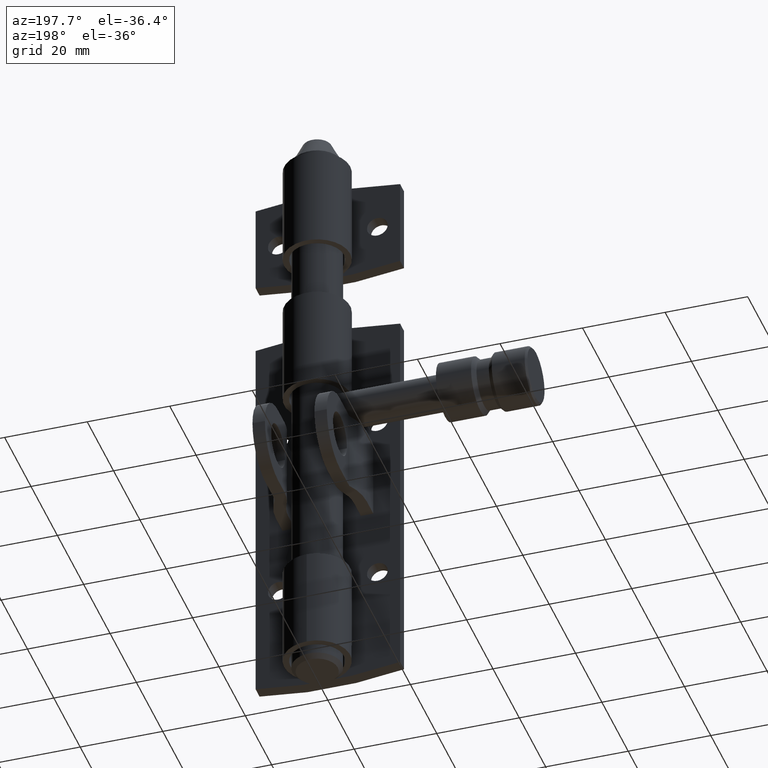
[diagram: clean part render]
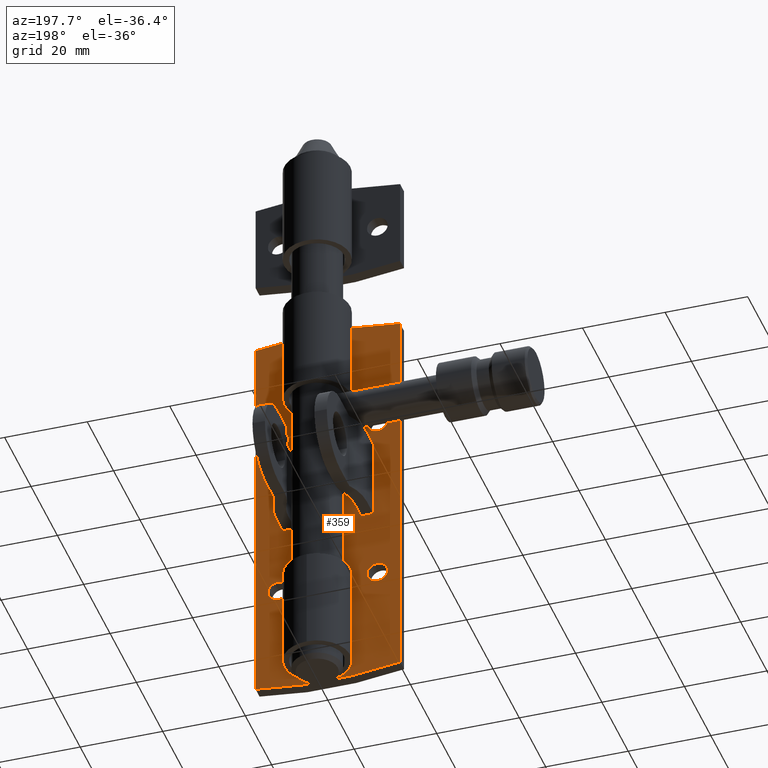
[diagram: same view with one face highlighted and labeled with its STEP entity id]
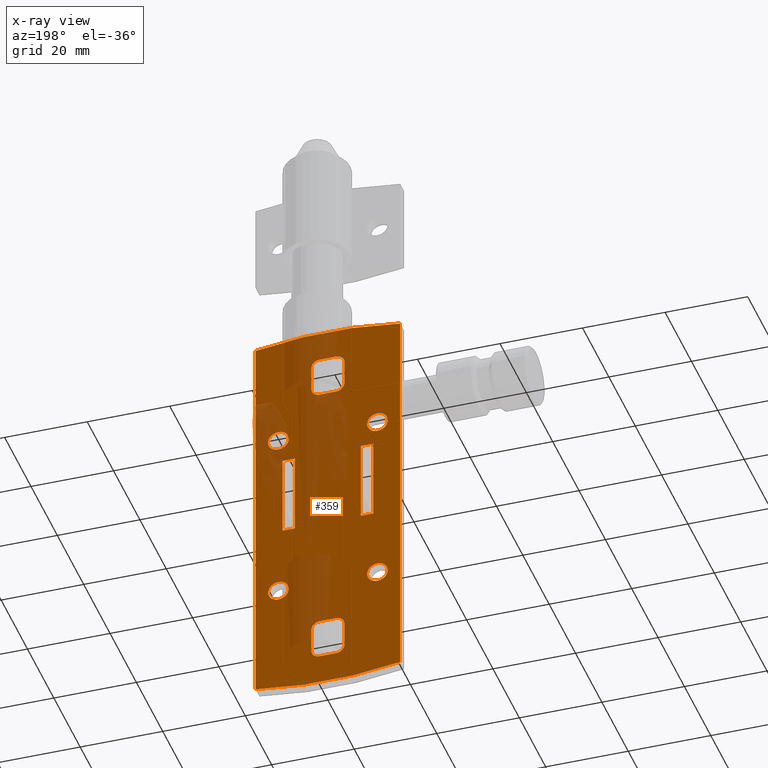
[diagram: x-ray of the same camera — body ghosted, the highlighted face saturated]
A machine part, auxiliary view. The second image highlights one B-rep face of the part: STEP entity #359.
The next image is the same camera in x-ray: the body ghosted, the highlighted face saturated — about 27% of this face is hidden behind the body in this view.
In plain terms, the highlighted planar face has unit normal (0, -1, 0).
Its self-contained STEP definition (entity closure, byte-faithful):
#7 = EDGE_CURVE ( 'NONE', #12780, #10408, #9918, .T. ) ;
#13 = DIRECTION ( 'NONE',  ( 0.000000000000000000, 0.000000000000000000, 1.000000000000000000 ) ) ;
#41 = DIRECTION ( 'NONE',  ( 0.000000000000000000, 0.000000000000000000, -1.000000000000000000 ) ) ;
#102 = CIRCLE ( 'NONE', #15064, 2.000000000000001776 ) ;
#201 = VERTEX_POINT ( 'NONE', #7106 ) ;
#247 = AXIS2_PLACEMENT_3D ( 'NONE', #5206, #14589, #14809 ) ;
#279 = CARTESIAN_POINT ( 'NONE',  ( -17.50000000000002132, 0.000000000000000000, -48.50000000000000000 ) ) ;
#294 = CARTESIAN_POINT ( 'NONE',  ( -3.999999999999999112, 0.000000000000000000, -40.49999999999999289 ) ) ;
#359 = ADVANCED_FACE ( 'NONE', ( #10472, #2017, #7272, #4115, #14631, #4656, #4467, #5597, #11410 ), #11913, .F. ) ;
#367 = EDGE_LOOP ( 'NONE', ( #10824, #4046, #2083, #12931, #10916, #12772, #8876, #7544 ) ) ;
#418 = CARTESIAN_POINT ( 'NONE',  ( 17.49999999999998579, 0.000000000000000000, -48.50000000000000000 ) ) ;
#483 = DIRECTION ( 'NONE',  ( -0.000000000000000000, -0.000000000000000000, -1.000000000000000000 ) ) ;
#493 = DIRECTION ( 'NONE',  ( 0.000000000000000000, 1.000000000000000000, 0.000000000000000000 ) ) ;
#513 = VERTEX_POINT ( 'NONE', #3188 ) ;
#622 = VERTEX_POINT ( 'NONE', #7778 ) ;
#636 = CARTESIAN_POINT ( 'NONE',  ( -11.00000000000000000, 6.245004513516503568E-16, -4.499999999999999112 ) ) ;
#637 = DIRECTION ( 'NONE',  ( -0.000000000000000000, -1.387778780781445676E-16, 1.000000000000000000 ) ) ;
#667 = EDGE_LOOP ( 'NONE', ( #4590 ) ) ;
#803 = CARTESIAN_POINT ( 'NONE',  ( 8.000000000000000000, 0.000000000000000000, 15.50000000000000000 ) ) ;
#976 = ORIENTED_EDGE ( 'NONE', *, *, #1668, .T. ) ;
#995 = EDGE_CURVE ( 'NONE', #3851, #3743, #1063, .T. ) ;
#1013 = DIRECTION ( 'NONE',  ( 0.000000000000000000, 0.000000000000000000, -1.000000000000000000 ) ) ;
#1063 = LINE ( 'NONE', #6787, #2568 ) ;
#1070 = AXIS2_PLACEMENT_3D ( 'NONE', #4056, #9133, #10319 ) ;
#1077 = CARTESIAN_POINT ( 'NONE',  ( 8.429652134130940764E-15, 0.000000000000000000, -52.83333333333337123 ) ) ;
#1125 = CARTESIAN_POINT ( 'NONE',  ( 11.00000000000000000, 6.245004513516503568E-16, -4.499999999999999112 ) ) ;
#1146 = VERTEX_POINT ( 'NONE', #5648 ) ;
#1434 = CARTESIAN_POINT ( 'NONE',  ( 17.49999999999998579, 0.000000000000000000, -48.50000000000000000 ) ) ;
#1445 = VECTOR ( 'NONE', #4489, 1000.000000000000000 ) ;
#1516 = VERTEX_POINT ( 'NONE', #6494 ) ;
#1563 = CARTESIAN_POINT ( 'NONE',  ( -12.00000000000000355, 0.000000000000000000, -21.49999999999999645 ) ) ;
#1619 = CARTESIAN_POINT ( 'NONE',  ( 4.000000000000000000, 0.000000000000000000, 32.50000000000000000 ) ) ;
#1626 = EDGE_CURVE ( 'NONE', #1516, #3743, #102, .T. ) ;
#1668 = EDGE_CURVE ( 'NONE', #3334, #1811, #5928, .T. ) ;
#1811 = VERTEX_POINT ( 'NONE', #7443 ) ;
#1911 = ORIENTED_EDGE ( 'NONE', *, *, #995, .F. ) ;
#1977 = AXIS2_PLACEMENT_3D ( 'NONE', #11824, #14267, #14586 ) ;
#2017 = FACE_OUTER_BOUND ( 'NONE', #15070, .T. ) ;
#2083 = ORIENTED_EDGE ( 'NONE', *, *, #7, .F. ) ;
#2190 = VERTEX_POINT ( 'NONE', #1434 ) ;
#2255 = CARTESIAN_POINT ( 'NONE',  ( 11.99999999999999645, 0.000000000000000000, -21.49999999999999645 ) ) ;
#2353 = CARTESIAN_POINT ( 'NONE',  ( 8.429652134130940764E-15, 0.000000000000000000, 52.83333333333337123 ) ) ;
#2506 = CIRCLE ( 'NONE', #1977, 2.499999999999998668 ) ;
#2568 = VECTOR ( 'NONE', #4543, 1000.000000000000000 ) ;
#2687 = VECTOR ( 'NONE', #9981, 1000.000000000000000 ) ;
#2715 = VERTEX_POINT ( 'NONE', #10478 ) ;
#2740 = EDGE_CURVE ( 'NONE', #6752, #10540, #3311, .T. ) ;
#2781 = EDGE_CURVE ( 'NONE', #3334, #8911, #12547, .T. ) ;
#2850 = AXIS2_PLACEMENT_3D ( 'NONE', #2353, #10762, #41 ) ;
#2868 = CARTESIAN_POINT ( 'NONE',  ( 2.000000000000000000, 0.000000000000000000, -42.49999999999999289 ) ) ;
#2872 = LINE ( 'NONE', #636, #4031 ) ;
#2878 = DIRECTION ( 'NONE',  ( 0.000000000000000000, 0.000000000000000000, 1.000000000000000000 ) ) ;
#3071 = ORIENTED_EDGE ( 'NONE', *, *, #9562, .T. ) ;
#3162 = ORIENTED_EDGE ( 'NONE', *, *, #2781, .F. ) ;
#3166 = VECTOR ( 'NONE', #13942, 1000.000000000000000 ) ;
#3188 = CARTESIAN_POINT ( 'NONE',  ( 4.000000000000000000, 0.000000000000000000, -34.50000000000000000 ) ) ;
#3244 = DIRECTION ( 'NONE',  ( -1.000000000000000000, -0.000000000000000000, -0.000000000000000000 ) ) ;
#3273 = EDGE_CURVE ( 'NONE', #15462, #15462, #10785, .T. ) ;
#3304 = CARTESIAN_POINT ( 'NONE',  ( -1.999999999999999112, 0.000000000000000000, 34.50000000000000000 ) ) ;
#3311 = LINE ( 'NONE', #10669, #14984 ) ;
#3334 = VERTEX_POINT ( 'NONE', #5879 ) ;
#3343 = DIRECTION ( 'NONE',  ( -1.000000000000000000, -0.000000000000000000, -0.000000000000000000 ) ) ;
#3432 = CARTESIAN_POINT ( 'NONE',  ( -1.999999999999999112, 0.000000000000000000, -34.50000000000000000 ) ) ;
#3499 = DIRECTION ( 'NONE',  ( -0.000000000000000000, -1.387778780781445676E-16, 1.000000000000000000 ) ) ;
#3612 = DIRECTION ( 'NONE',  ( -0.000000000000000000, -1.000000000000000000, 0.000000000000000000 ) ) ;
#3645 = VERTEX_POINT ( 'NONE', #14985 ) ;
#3743 = VERTEX_POINT ( 'NONE', #5183 ) ;
#3851 = VERTEX_POINT ( 'NONE', #11527 ) ;
#3860 = EDGE_CURVE ( 'NONE', #9828, #13171, #2872, .T. ) ;
#3930 = EDGE_CURVE ( 'NONE', #8204, #13996, #13221, .T. ) ;
#3968 = LINE ( 'NONE', #12626, #5072 ) ;
#3976 = CIRCLE ( 'NONE', #5240, 102.8333333333333570 ) ;
#4031 = VECTOR ( 'NONE', #3244, 1000.000000000000000 ) ;
#4046 = ORIENTED_EDGE ( 'NONE', *, *, #4696, .T. ) ;
#4048 = DIRECTION ( 'NONE',  ( -0.000000000000000000, -1.000000000000000000, 0.000000000000000000 ) ) ;
#4056 = CARTESIAN_POINT ( 'NONE',  ( -1.999999999999999112, 0.000000000000000000, -40.49999999999999289 ) ) ;
#4115 = FACE_BOUND ( 'NONE', #667, .T. ) ;
#4288 = LINE ( 'NONE', #8281, #11766 ) ;
#4351 = CARTESIAN_POINT ( 'NONE',  ( -12.00000000000000355, 0.000000000000000000, -18.99999999999999645 ) ) ;
#4467 = FACE_BOUND ( 'NONE', #6736, .T. ) ;
#4489 = DIRECTION ( 'NONE',  ( 0.000000000000000000, 0.000000000000000000, 1.000000000000000000 ) ) ;
#4543 = DIRECTION ( 'NONE',  ( -1.000000000000000000, -0.000000000000000000, -0.000000000000000000 ) ) ;
#4557 = AXIS2_PLACEMENT_3D ( 'NONE', #1563, #493, #13724 ) ;
#4590 = ORIENTED_EDGE ( 'NONE', *, *, #7901, .F. ) ;
#4599 = CARTESIAN_POINT ( 'NONE',  ( 4.000000000000000000, 0.000000000000000000, 34.50000000000000000 ) ) ;
#4656 = FACE_BOUND ( 'NONE', #13029, .T. ) ;
#4696 = EDGE_CURVE ( 'NONE', #513, #10408, #15272, .T. ) ;
#4837 = DIRECTION ( 'NONE',  ( 0.000000000000000000, -1.000000000000000000, 0.000000000000000000 ) ) ;
#4953 = CARTESIAN_POINT ( 'NONE',  ( -1.999999999999999112, 0.000000000000000000, -42.49999999999999289 ) ) ;
#5041 = LINE ( 'NONE', #15260, #1445 ) ;
#5072 = VECTOR ( 'NONE', #637, 1000.000000000000000 ) ;
#5183 = CARTESIAN_POINT ( 'NONE',  ( -1.999999999999999112, 0.000000000000000000, 32.50000000000000000 ) ) ;
#5206 = CARTESIAN_POINT ( 'NONE',  ( 2.000000000000000000, 0.000000000000000000, -40.49999999999999289 ) ) ;
#5240 = AXIS2_PLACEMENT_3D ( 'NONE', #1077, #8481, #13 ) ;
#5454 = ORIENTED_EDGE ( 'NONE', *, *, #15159, .T. ) ;
#5475 = VECTOR ( 'NONE', #14590, 1000.000000000000000 ) ;
#5565 = EDGE_CURVE ( 'NONE', #14127, #8710, #3976, .T. ) ;
#5597 = FACE_BOUND ( 'NONE', #8989, .T. ) ;
#5648 = CARTESIAN_POINT ( 'NONE',  ( -11.99999999999997513, 0.000000000000000000, 24.00000000000000355 ) ) ;
#5678 = EDGE_CURVE ( 'NONE', #10774, #13472, #8859, .T. ) ;
#5699 = LINE ( 'NONE', #10173, #12888 ) ;
#5713 = DIRECTION ( 'NONE',  ( 0.000000000000000000, 0.000000000000000000, -1.000000000000000000 ) ) ;
#5835 = CIRCLE ( 'NONE', #247, 2.000000000000001776 ) ;
#5874 = ORIENTED_EDGE ( 'NONE', *, *, #13637, .F. ) ;
#5879 = CARTESIAN_POINT ( 'NONE',  ( 8.000000000000000000, 0.000000000000000000, -4.499999999999997335 ) ) ;
#5928 = LINE ( 'NONE', #1125, #9503 ) ;
#6070 = EDGE_LOOP ( 'NONE', ( #5874 ) ) ;
#6401 = CIRCLE ( 'NONE', #10427, 2.000000000000001776 ) ;
#6494 = CARTESIAN_POINT ( 'NONE',  ( -3.999999999999999112, 0.000000000000000000, 34.50000000000000000 ) ) ;
#6670 = DIRECTION ( 'NONE',  ( -0.000000000000000000, -1.387778780781445676E-16, 1.000000000000000000 ) ) ;
#6671 = EDGE_CURVE ( 'NONE', #513, #10066, #12638, .T. ) ;
#6690 = ORIENTED_EDGE ( 'NONE', *, *, #10430, .T. ) ;
#6698 = ORIENTED_EDGE ( 'NONE', *, *, #11492, .T. ) ;
#6736 = EDGE_LOOP ( 'NONE', ( #7997, #15490, #14598, #6690 ) ) ;
#6752 = VERTEX_POINT ( 'NONE', #2868 ) ;
#6760 = CARTESIAN_POINT ( 'NONE',  ( 4.000000000000000000, 0.000000000000000000, -40.49999999999999289 ) ) ;
#6787 = CARTESIAN_POINT ( 'NONE',  ( -3.999999999999999112, 0.000000000000000000, 32.50000000000000000 ) ) ;
#6939 = CIRCLE ( 'NONE', #6960, 2.499999999999998668 ) ;
#6943 = DIRECTION ( 'NONE',  ( -0.000000000000000000, -1.000000000000000000, 0.000000000000000000 ) ) ;
#6960 = AXIS2_PLACEMENT_3D ( 'NONE', #8041, #11640, #13943 ) ;
#7007 = ORIENTED_EDGE ( 'NONE', *, *, #10987, .T. ) ;
#7031 = DIRECTION ( 'NONE',  ( -0.000000000000000000, -1.000000000000000000, 0.000000000000000000 ) ) ;
#7106 = CARTESIAN_POINT ( 'NONE',  ( 11.99999999999998934, 0.000000000000000000, 24.00000000000000000 ) ) ;
#7186 = CARTESIAN_POINT ( 'NONE',  ( -1.999999999999999112, 0.000000000000000000, 42.49999999999999289 ) ) ;
#7196 = DIRECTION ( 'NONE',  ( 0.000000000000000000, 0.000000000000000000, 1.000000000000000000 ) ) ;
#7209 = DIRECTION ( 'NONE',  ( -1.000000000000000000, -0.000000000000000000, -0.000000000000000000 ) ) ;
#7227 = CARTESIAN_POINT ( 'NONE',  ( -3.999999999999999112, 0.000000000000000000, 42.49999999999999289 ) ) ;
#7272 = FACE_BOUND ( 'NONE', #12789, .T. ) ;
#7285 = CIRCLE ( 'NONE', #2850, 102.8333333333333570 ) ;
#7405 = DIRECTION ( 'NONE',  ( 1.000000000000000000, -0.000000000000000000, -0.000000000000000000 ) ) ;
#7443 = CARTESIAN_POINT ( 'NONE',  ( 11.00000000000000000, 0.000000000000000000, -4.499999999999997335 ) ) ;
#7544 = ORIENTED_EDGE ( 'NONE', *, *, #11488, .T. ) ;
#7646 = DIRECTION ( 'NONE',  ( 0.000000000000000000, 0.000000000000000000, -1.000000000000000000 ) ) ;
#7664 = AXIS2_PLACEMENT_3D ( 'NONE', #13177, #3612, #11789 ) ;
#7710 = AXIS2_PLACEMENT_3D ( 'NONE', #2255, #15511, #7196 ) ;
#7778 = CARTESIAN_POINT ( 'NONE',  ( -11.00000000000000000, 0.000000000000000000, 15.50000000000000000 ) ) ;
#7901 = EDGE_CURVE ( 'NONE', #1146, #1146, #6939, .T. ) ;
#7997 = ORIENTED_EDGE ( 'NONE', *, *, #10683, .F. ) ;
#8009 = AXIS2_PLACEMENT_3D ( 'NONE', #8074, #10386, #10528 ) ;
#8041 = CARTESIAN_POINT ( 'NONE',  ( -11.99999999999997513, 0.000000000000000000, 21.50000000000000355 ) ) ;
#8074 = CARTESIAN_POINT ( 'NONE',  ( 2.000000000000000000, 0.000000000000000000, 34.50000000000000000 ) ) ;
#8135 = EDGE_CURVE ( 'NONE', #8911, #13898, #11051, .T. ) ;
#8169 = LINE ( 'NONE', #12262, #13810 ) ;
#8204 = VERTEX_POINT ( 'NONE', #11978 ) ;
#8231 = DIRECTION ( 'NONE',  ( -0.000000000000000000, -1.387778780781445676E-16, 1.000000000000000000 ) ) ;
#8281 = CARTESIAN_POINT ( 'NONE',  ( 11.00000000000000000, 6.245004513516503568E-16, -4.499999999999999112 ) ) ;
#8284 = VECTOR ( 'NONE', #12560, 1000.000000000000000 ) ;
#8286 = ORIENTED_EDGE ( 'NONE', *, *, #8608, .T. ) ;
#8409 = CARTESIAN_POINT ( 'NONE',  ( 8.429652134130940764E-15, 0.000000000000000000, 52.83333333333337123 ) ) ;
#8459 = CARTESIAN_POINT ( 'NONE',  ( 2.000000000000000000, 0.000000000000000000, -32.50000000000000000 ) ) ;
#8481 = DIRECTION ( 'NONE',  ( 0.000000000000000000, 1.000000000000000000, 0.000000000000000000 ) ) ;
#8507 = EDGE_CURVE ( 'NONE', #14134, #14127, #5041, .T. ) ;
#8591 = DIRECTION ( 'NONE',  ( 1.000000000000000000, -0.000000000000000000, -0.000000000000000000 ) ) ;
#8608 = EDGE_CURVE ( 'NONE', #2190, #14134, #7285, .T. ) ;
#8710 = VERTEX_POINT ( 'NONE', #11964 ) ;
#8835 = ORIENTED_EDGE ( 'NONE', *, *, #3273, .F. ) ;
#8836 = EDGE_CURVE ( 'NONE', #9607, #9607, #15383, .T. ) ;
#8859 = LINE ( 'NONE', #7227, #5475 ) ;
#8876 = ORIENTED_EDGE ( 'NONE', *, *, #2740, .F. ) ;
#8911 = VERTEX_POINT ( 'NONE', #803 ) ;
#8989 = EDGE_LOOP ( 'NONE', ( #3162, #976, #11851, #12235 ) ) ;
#9014 = AXIS2_PLACEMENT_3D ( 'NONE', #11196, #4048, #7646 ) ;
#9133 = DIRECTION ( 'NONE',  ( -0.000000000000000000, -1.000000000000000000, 0.000000000000000000 ) ) ;
#9262 = LINE ( 'NONE', #418, #9624 ) ;
#9326 = CARTESIAN_POINT ( 'NONE',  ( 11.99999999999999645, 0.000000000000000000, -18.99999999999999645 ) ) ;
#9330 = CARTESIAN_POINT ( 'NONE',  ( 2.000000000000000000, 0.000000000000000000, 42.49999999999999289 ) ) ;
#9343 = EDGE_CURVE ( 'NONE', #1811, #13898, #4288, .T. ) ;
#9420 = CARTESIAN_POINT ( 'NONE',  ( -3.999999999999999112, 0.000000000000000000, -34.50000000000000000 ) ) ;
#9503 = VECTOR ( 'NONE', #8591, 1000.000000000000000 ) ;
#9562 = EDGE_CURVE ( 'NONE', #10774, #2715, #11914, .T. ) ;
#9607 = VERTEX_POINT ( 'NONE', #4351 ) ;
#9608 = CARTESIAN_POINT ( 'NONE',  ( -8.000000000000000000, 0.000000000000000000, -4.499999999999997335 ) ) ;
#9624 = VECTOR ( 'NONE', #483, 1000.000000000000000 ) ;
#9645 = CARTESIAN_POINT ( 'NONE',  ( 11.00000000000000000, -2.151057110211241192E-15, 15.50000000000000178 ) ) ;
#9828 = VERTEX_POINT ( 'NONE', #9608 ) ;
#9918 = LINE ( 'NONE', #10406, #3166 ) ;
#9981 = DIRECTION ( 'NONE',  ( -0.000000000000000000, -0.000000000000000000, -1.000000000000000000 ) ) ;
#10066 = VERTEX_POINT ( 'NONE', #6760 ) ;
#10069 = VECTOR ( 'NONE', #3499, 1000.000000000000000 ) ;
#10173 = CARTESIAN_POINT ( 'NONE',  ( -3.999999999999999112, 0.000000000000000000, 32.50000000000000000 ) ) ;
#10318 = CARTESIAN_POINT ( 'NONE',  ( -1.999999999999999112, 0.000000000000000000, -32.50000000000000000 ) ) ;
#10319 = DIRECTION ( 'NONE',  ( 0.000000000000000000, 0.000000000000000000, -1.000000000000000000 ) ) ;
#10386 = DIRECTION ( 'NONE',  ( -0.000000000000000000, -1.000000000000000000, 0.000000000000000000 ) ) ;
#10406 = CARTESIAN_POINT ( 'NONE',  ( -3.999999999999999112, 0.000000000000000000, -32.50000000000000000 ) ) ;
#10408 = VERTEX_POINT ( 'NONE', #8459 ) ;
#10427 = AXIS2_PLACEMENT_3D ( 'NONE', #3432, #6943, #1013 ) ;
#10430 = EDGE_CURVE ( 'NONE', #3645, #622, #13377, .T. ) ;
#10472 = FACE_BOUND ( 'NONE', #11717, .T. ) ;
#10478 = CARTESIAN_POINT ( 'NONE',  ( -3.999999999999999112, 0.000000000000000000, 40.49999999999999289 ) ) ;
#10528 = DIRECTION ( 'NONE',  ( 0.000000000000000000, 0.000000000000000000, -1.000000000000000000 ) ) ;
#10540 = VERTEX_POINT ( 'NONE', #4953 ) ;
#10544 = DIRECTION ( 'NONE',  ( 0.000000000000000000, 0.000000000000000000, -1.000000000000000000 ) ) ;
#10669 = CARTESIAN_POINT ( 'NONE',  ( -3.999999999999999112, 0.000000000000000000, -42.49999999999999289 ) ) ;
#10683 = EDGE_CURVE ( 'NONE', #13171, #622, #12002, .T. ) ;
#10762 = DIRECTION ( 'NONE',  ( 0.000000000000000000, 1.000000000000000000, -0.000000000000000000 ) ) ;
#10774 = VERTEX_POINT ( 'NONE', #7186 ) ;
#10785 = CIRCLE ( 'NONE', #7710, 2.499999999999998668 ) ;
#10813 = DIRECTION ( 'NONE',  ( 0.000000000000000000, -0.000000000000000000, -1.000000000000000000 ) ) ;
#10824 = ORIENTED_EDGE ( 'NONE', *, *, #6671, .F. ) ;
#10916 = ORIENTED_EDGE ( 'NONE', *, *, #14080, .F. ) ;
#10987 = EDGE_CURVE ( 'NONE', #3851, #13996, #11454, .T. ) ;
#10989 = EDGE_CURVE ( 'NONE', #9828, #3645, #3968, .T. ) ;
#11051 = LINE ( 'NONE', #9645, #11248 ) ;
#11059 = CARTESIAN_POINT ( 'NONE',  ( 11.00000000000000000, -2.151057110211241192E-15, 15.50000000000000178 ) ) ;
#11095 = CARTESIAN_POINT ( 'NONE',  ( -17.50000000000002132, 0.000000000000000000, 48.50000000000000000 ) ) ;
#11099 = CIRCLE ( 'NONE', #15559, 2.000000000000001776 ) ;
#11196 = CARTESIAN_POINT ( 'NONE',  ( -1.999999999999999112, 0.000000000000000000, 40.49999999999999289 ) ) ;
#11248 = VECTOR ( 'NONE', #7405, 1000.000000000000000 ) ;
#11315 = ORIENTED_EDGE ( 'NONE', *, *, #3930, .F. ) ;
#11350 = VERTEX_POINT ( 'NONE', #9420 ) ;
#11410 = FACE_BOUND ( 'NONE', #367, .T. ) ;
#11454 = CIRCLE ( 'NONE', #8009, 2.000000000000001776 ) ;
#11488 = EDGE_CURVE ( 'NONE', #6752, #10066, #5835, .T. ) ;
#11492 = EDGE_CURVE ( 'NONE', #8204, #13472, #11099, .T. ) ;
#11527 = CARTESIAN_POINT ( 'NONE',  ( 2.000000000000000000, 0.000000000000000000, 32.50000000000000000 ) ) ;
#11640 = DIRECTION ( 'NONE',  ( 0.000000000000000000, 1.000000000000000000, 0.000000000000000000 ) ) ;
#11703 = CIRCLE ( 'NONE', #1070, 2.000000000000001776 ) ;
#11717 = EDGE_LOOP ( 'NONE', ( #1911, #7007, #11315, #6698, #15167, #3071, #12691, #14486 ) ) ;
#11766 = VECTOR ( 'NONE', #8231, 1000.000000000000000 ) ;
#11789 = DIRECTION ( 'NONE',  ( 0.000000000000000000, 0.000000000000000000, -1.000000000000000000 ) ) ;
#11824 = CARTESIAN_POINT ( 'NONE',  ( 11.99999999999998934, 0.000000000000000000, 21.50000000000000000 ) ) ;
#11835 = ORIENTED_EDGE ( 'NONE', *, *, #8836, .F. ) ;
#11851 = ORIENTED_EDGE ( 'NONE', *, *, #9343, .T. ) ;
#11913 = PLANE ( 'NONE',  #12643 ) ;
#11914 = CIRCLE ( 'NONE', #9014, 2.000000000000001776 ) ;
#11964 = CARTESIAN_POINT ( 'NONE',  ( 17.49999999999995737, 0.000000000000000000, 48.49999999999998579 ) ) ;
#11978 = CARTESIAN_POINT ( 'NONE',  ( 4.000000000000000000, 0.000000000000000000, 40.49999999999999289 ) ) ;
#11988 = EDGE_CURVE ( 'NONE', #12780, #11350, #6401, .T. ) ;
#12002 = LINE ( 'NONE', #13782, #15607 ) ;
#12235 = ORIENTED_EDGE ( 'NONE', *, *, #8135, .F. ) ;
#12262 = CARTESIAN_POINT ( 'NONE',  ( -3.999999999999999112, 0.000000000000000000, -42.49999999999999289 ) ) ;
#12547 = LINE ( 'NONE', #13113, #10069 ) ;
#12560 = DIRECTION ( 'NONE',  ( -0.000000000000000000, -0.000000000000000000, -1.000000000000000000 ) ) ;
#12626 = CARTESIAN_POINT ( 'NONE',  ( -8.000000000000000000, 6.245004513516503568E-16, -4.499999999999999112 ) ) ;
#12638 = LINE ( 'NONE', #13539, #8284 ) ;
#12643 = AXIS2_PLACEMENT_3D ( 'NONE', #8409, #4837, #10813 ) ;
#12691 = ORIENTED_EDGE ( 'NONE', *, *, #14525, .F. ) ;
#12750 = CARTESIAN_POINT ( 'NONE',  ( -11.00000000000000000, 0.000000000000000000, -4.499999999999997335 ) ) ;
#12772 = ORIENTED_EDGE ( 'NONE', *, *, #14671, .T. ) ;
#12780 = VERTEX_POINT ( 'NONE', #10318 ) ;
#12789 = EDGE_LOOP ( 'NONE', ( #11835 ) ) ;
#12888 = VECTOR ( 'NONE', #2878, 1000.000000000000000 ) ;
#12931 = ORIENTED_EDGE ( 'NONE', *, *, #11988, .T. ) ;
#13029 = EDGE_LOOP ( 'NONE', ( #8835 ) ) ;
#13113 = CARTESIAN_POINT ( 'NONE',  ( 8.000000000000000000, 6.245004513516503568E-16, -4.499999999999999112 ) ) ;
#13171 = VERTEX_POINT ( 'NONE', #12750 ) ;
#13177 = CARTESIAN_POINT ( 'NONE',  ( 2.000000000000000000, 0.000000000000000000, -34.50000000000000000 ) ) ;
#13212 = CARTESIAN_POINT ( 'NONE',  ( -11.00000000000000000, -2.151057110211241192E-15, 15.50000000000000178 ) ) ;
#13221 = LINE ( 'NONE', #1619, #2687 ) ;
#13377 = LINE ( 'NONE', #13212, #15082 ) ;
#13432 = DIRECTION ( 'NONE',  ( 0.000000000000000000, 0.000000000000000000, 1.000000000000000000 ) ) ;
#13472 = VERTEX_POINT ( 'NONE', #9330 ) ;
#13539 = CARTESIAN_POINT ( 'NONE',  ( 4.000000000000000000, 0.000000000000000000, -42.49999999999999289 ) ) ;
#13637 = EDGE_CURVE ( 'NONE', #201, #201, #2506, .T. ) ;
#13724 = DIRECTION ( 'NONE',  ( 0.000000000000000000, 0.000000000000000000, 1.000000000000000000 ) ) ;
#13782 = CARTESIAN_POINT ( 'NONE',  ( -11.00000000000000000, 6.245004513516503568E-16, -4.499999999999999112 ) ) ;
#13810 = VECTOR ( 'NONE', #13432, 1000.000000000000000 ) ;
#13898 = VERTEX_POINT ( 'NONE', #11059 ) ;
#13942 = DIRECTION ( 'NONE',  ( 1.000000000000000000, 0.000000000000000000, 0.000000000000000000 ) ) ;
#13943 = DIRECTION ( 'NONE',  ( 0.000000000000000000, 0.000000000000000000, 1.000000000000000000 ) ) ;
#13996 = VERTEX_POINT ( 'NONE', #4599 ) ;
#14080 = EDGE_CURVE ( 'NONE', #14411, #11350, #8169, .T. ) ;
#14127 = VERTEX_POINT ( 'NONE', #11095 ) ;
#14134 = VERTEX_POINT ( 'NONE', #279 ) ;
#14238 = CARTESIAN_POINT ( 'NONE',  ( 2.000000000000000000, 0.000000000000000000, 40.49999999999999289 ) ) ;
#14267 = DIRECTION ( 'NONE',  ( 0.000000000000000000, 1.000000000000000000, 0.000000000000000000 ) ) ;
#14406 = ORIENTED_EDGE ( 'NONE', *, *, #8507, .T. ) ;
#14411 = VERTEX_POINT ( 'NONE', #294 ) ;
#14486 = ORIENTED_EDGE ( 'NONE', *, *, #1626, .T. ) ;
#14525 = EDGE_CURVE ( 'NONE', #1516, #2715, #5699, .T. ) ;
#14586 = DIRECTION ( 'NONE',  ( 0.000000000000000000, 0.000000000000000000, 1.000000000000000000 ) ) ;
#14589 = DIRECTION ( 'NONE',  ( -0.000000000000000000, -1.000000000000000000, 0.000000000000000000 ) ) ;
#14590 = DIRECTION ( 'NONE',  ( 1.000000000000000000, 0.000000000000000000, 0.000000000000000000 ) ) ;
#14598 = ORIENTED_EDGE ( 'NONE', *, *, #10989, .T. ) ;
#14631 = FACE_BOUND ( 'NONE', #6070, .T. ) ;
#14671 = EDGE_CURVE ( 'NONE', #14411, #10540, #11703, .T. ) ;
#14809 = DIRECTION ( 'NONE',  ( 0.000000000000000000, 0.000000000000000000, -1.000000000000000000 ) ) ;
#14984 = VECTOR ( 'NONE', #3343, 1000.000000000000000 ) ;
#14985 = CARTESIAN_POINT ( 'NONE',  ( -8.000000000000000000, -2.151057110211241192E-15, 15.50000000000000178 ) ) ;
#15064 = AXIS2_PLACEMENT_3D ( 'NONE', #3304, #15389, #5713 ) ;
#15070 = EDGE_LOOP ( 'NONE', ( #8286, #14406, #15304, #5454 ) ) ;
#15082 = VECTOR ( 'NONE', #7209, 1000.000000000000000 ) ;
#15159 = EDGE_CURVE ( 'NONE', #8710, #2190, #9262, .T. ) ;
#15167 = ORIENTED_EDGE ( 'NONE', *, *, #5678, .F. ) ;
#15260 = CARTESIAN_POINT ( 'NONE',  ( -17.50000000000002132, 0.000000000000000000, -48.50000000000000000 ) ) ;
#15272 = CIRCLE ( 'NONE', #7664, 2.000000000000001776 ) ;
#15304 = ORIENTED_EDGE ( 'NONE', *, *, #5565, .T. ) ;
#15383 = CIRCLE ( 'NONE', #4557, 2.499999999999998668 ) ;
#15389 = DIRECTION ( 'NONE',  ( -0.000000000000000000, -1.000000000000000000, 0.000000000000000000 ) ) ;
#15462 = VERTEX_POINT ( 'NONE', #9326 ) ;
#15490 = ORIENTED_EDGE ( 'NONE', *, *, #3860, .F. ) ;
#15511 = DIRECTION ( 'NONE',  ( 0.000000000000000000, 1.000000000000000000, 0.000000000000000000 ) ) ;
#15559 = AXIS2_PLACEMENT_3D ( 'NONE', #14238, #7031, #10544 ) ;
#15607 = VECTOR ( 'NONE', #6670, 1000.000000000000000 ) ;